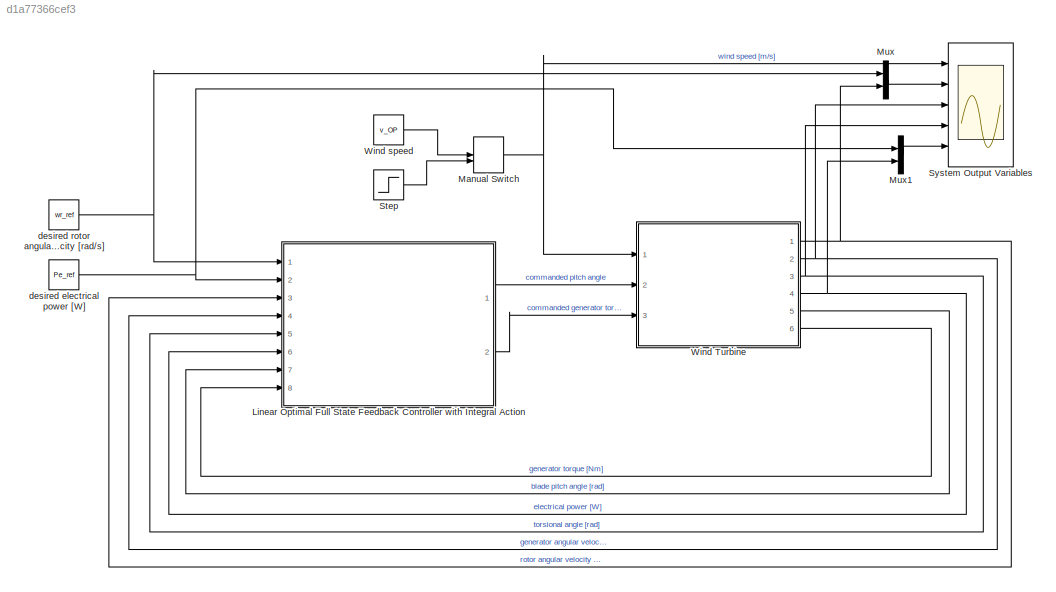
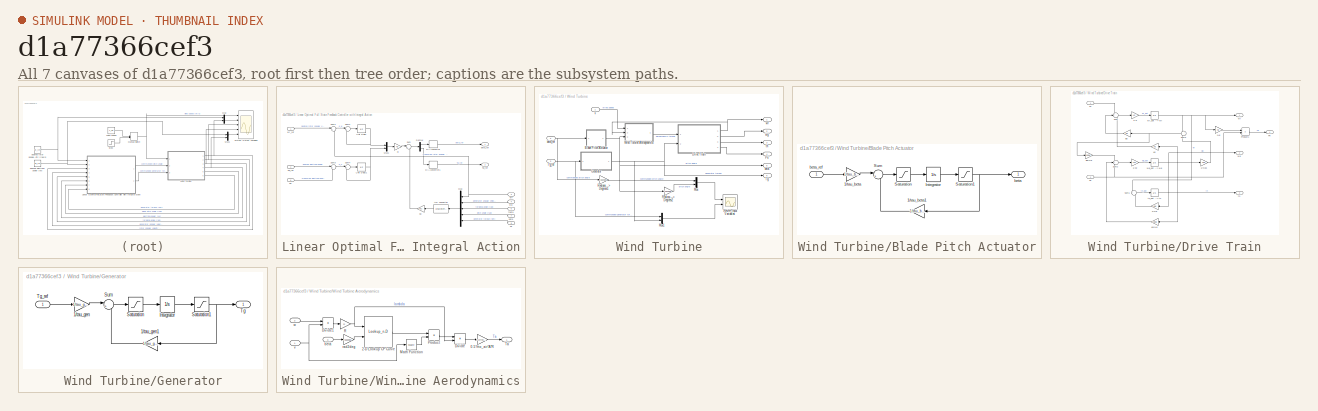
[diagram: thumbnail index - all 7 canvases of the model, root first then tree order]
MODEL slx_d1a77366cef3
KIND model
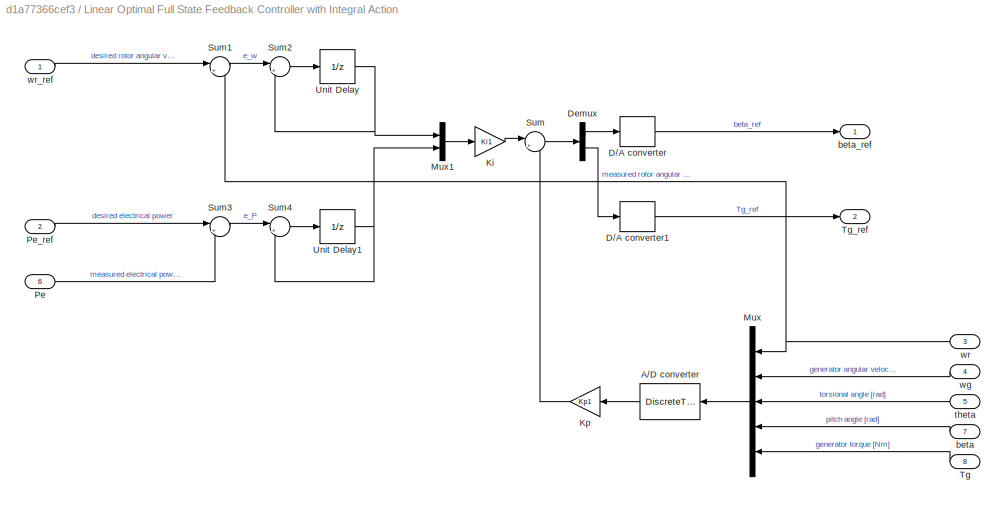
BLOCK [SubSystem] Linear Optimal Full State Feedback Controller with Integral Action
  FunctionWithSeparateData = off
  MaskHideContents = off
  MinAlgLoopOccurrences = off
  Opaque = off
  Permissions = NoReadOrWrite
  Ports = [8, 2]
  PropExecContextOutsideSubsystem = off
  RTWSystemCode = Auto
  RequestExecContextInheritance = off
BLOCK [DiscreteTransferFcn] Linear Optimal Full State Feedback Controller with Integral Action/A//D converter
  Denominator = [1]
  InputPortMap = u0
  Ports = [1, 1]
  SampleTime = Ts
BLOCK [ZeroOrderHold] Linear Optimal Full State Feedback Controller with Integral Action/D//A converter
  SampleTime = Ts
BLOCK [ZeroOrderHold] Linear Optimal Full State Feedback Controller with Integral Action/D//A converter1
  SampleTime = Ts
BLOCK [Demux] Linear Optimal Full State Feedback Controller with Integral Action/Demux
  DisplayOption = bar
  Outputs = 2
  Ports = [1, 2]
BLOCK [Gain] Linear Optimal Full State Feedback Controller with Integral Action/Ki
  Gain = Ki1
  Multiplication = Matrix(K*u) (u vector)
  OutDataTypeStr = Inherit: Inherit via internal rule
  ParamDataTypeStr = Inherit: Inherit via internal rule
  SampleTime = Ts
  SaturateOnIntegerOverflow = off
BLOCK [Gain] Linear Optimal Full State Feedback Controller with Integral Action/Kp
  Gain = Kp1
  Multiplication = Matrix(K*u) (u vector)
  OutDataTypeStr = Inherit: Inherit via internal rule
  ParamDataTypeStr = Inherit: Inherit via internal rule
  SampleTime = Ts
  SaturateOnIntegerOverflow = off
BLOCK [Mux] Linear Optimal Full State Feedback Controller with Integral Action/Mux
  DisplayOption = bar
  Inputs = 5
  Ports = [5, 1]
BLOCK [Mux] Linear Optimal Full State Feedback Controller with Integral Action/Mux1
  DisplayOption = bar
  Inputs = 2
  Ports = [2, 1]
BLOCK [Inport] Linear Optimal Full State Feedback Controller with Integral Action/Pe
  IconDisplay = Port number
  Port = 6
BLOCK [Inport] Linear Optimal Full State Feedback Controller with Integral Action/Pe_ref
  IconDisplay = Port number
  Port = 2
BLOCK [Sum] Linear Optimal Full State Feedback Controller with Integral Action/Sum
  IconShape = round
  InputSameDT = off
  Inputs = |+-
  OutDataTypeStr = Inherit: Inherit via internal rule
  Ports = [2, 1]
  SaturateOnIntegerOverflow = off
BLOCK [Sum] Linear Optimal Full State Feedback Controller with Integral Action/Sum1
  IconShape = round
  InputSameDT = off
  Inputs = |+-
  OutDataTypeStr = Inherit: Inherit via internal rule
  Ports = [2, 1]
  SaturateOnIntegerOverflow = off
BLOCK [Sum] Linear Optimal Full State Feedback Controller with Integral Action/Sum2
  IconShape = round
  InputSameDT = off
  Inputs = |++
  OutDataTypeStr = Inherit: Inherit via internal rule
  Ports = [2, 1]
  SaturateOnIntegerOverflow = off
BLOCK [Sum] Linear Optimal Full State Feedback Controller with Integral Action/Sum3
  IconShape = round
  InputSameDT = off
  Inputs = |+-
  OutDataTypeStr = Inherit: Inherit via internal rule
  Ports = [2, 1]
  SaturateOnIntegerOverflow = off
BLOCK [Sum] Linear Optimal Full State Feedback Controller with Integral Action/Sum4
  IconShape = round
  InputSameDT = off
  Inputs = |++
  OutDataTypeStr = Inherit: Inherit via internal rule
  Ports = [2, 1]
  SaturateOnIntegerOverflow = off
BLOCK [Inport] Linear Optimal Full State Feedback Controller with Integral Action/Tg
  IconDisplay = Port number
  Port = 8
BLOCK [Outport] Linear Optimal Full State Feedback Controller with Integral Action/Tg_ref
  IconDisplay = Port number
  Port = 2
BLOCK [UnitDelay] Linear Optimal Full State Feedback Controller with Integral Action/Unit Delay
  InitialCondition = xi0(1)
  InputProcessing = Elements as channels (sample based)
  SampleTime = Ts
BLOCK [UnitDelay] Linear Optimal Full State Feedback Controller with Integral Action/Unit Delay1
  InitialCondition = xi0(2)
  InputProcessing = Elements as channels (sample based)
  SampleTime = Ts
BLOCK [Inport] Linear Optimal Full State Feedback Controller with Integral Action/beta
  IconDisplay = Port number
  Port = 7
BLOCK [Outport] Linear Optimal Full State Feedback Controller with Integral Action/beta_ref
  IconDisplay = Port number
BLOCK [Inport] Linear Optimal Full State Feedback Controller with Integral Action/theta
  IconDisplay = Port number
  Port = 5
BLOCK [Inport] Linear Optimal Full State Feedback Controller with Integral Action/wg
  IconDisplay = Port number
  Port = 4
BLOCK [Inport] Linear Optimal Full State Feedback Controller with Integral Action/wr
  IconDisplay = Port number
  Port = 3
BLOCK [Inport] Linear Optimal Full State Feedback Controller with Integral Action/wr_ref
  IconDisplay = Port number
BLOCK [ManualSwitch] Manual Switch
BLOCK [Mux] Mux
  DisplayOption = bar
  Inputs = 2
  Ports = [2, 1]
BLOCK [Mux] Mux1
  DisplayOption = bar
  Inputs = 2
  Ports = [2, 1]
BLOCK [Step] Step
  After = StepFinalValue_wind
  Before = v_OP
  SampleTime = 0
  Time = StepTime_wind
BLOCK [Scope] System Output Variables
  DataFormat = StructureWithTime
  Floating = off
  LegendLocations = 0.89427      0.9291    0.086875    0.025072\n0.83896     0.72174     0.14188     0.04439\n 0.8474     0.55302     0.13375    0.025072\n 0.8874      0.3656     0.09375    0.025072\n0.86271     0.15824     0.11812     0.04439
  LimitDataPoints = off
  NumInputPorts = 5
  Ports = [5]
  SampleTime = 0
  ShowLegends = on
  YMax = 21~1.272~123.55~0.004725~5.0125e+06
  YMin = 20~1.267~122.9~0.004425~4.99e+06
  ZoomMode = xonly
BLOCK [SubSystem] Wind Turbine
  FunctionWithSeparateData = off
  MaskHideContents = off
  MinAlgLoopOccurrences = off
  Opaque = off
  Ports = [3, 6]
  PropExecContextOutsideSubsystem = off
  RTWSystemCode = Auto
  RequestExecContextInheritance = off
BLOCK [SubSystem] Wind Turbine/Blade Pitch Actuator
  FunctionWithSeparateData = off
  MaskHideContents = off
  MinAlgLoopOccurrences = off
  Opaque = off
  Ports = [1, 1]
  PropExecContextOutsideSubsystem = off
  RTWSystemCode = Auto
  RequestExecContextInheritance = off
BLOCK [Gain] Wind Turbine/Blade Pitch Actuator/1//tau_beta
  Gain = 1/tau_beta
  OutDataTypeStr = Inherit: Inherit via internal rule
  ParamDataTypeStr = Inherit: Inherit via internal rule
  SaturateOnIntegerOverflow = off
BLOCK [Gain] Wind Turbine/Blade Pitch Actuator/1//tau_beta1
  Gain = 1/tau_beta
  OutDataTypeStr = Inherit: Inherit via internal rule
  ParamDataTypeStr = Inherit: Inherit via internal rule
  SaturateOnIntegerOverflow = off
BLOCK [Integrator] Wind Turbine/Blade Pitch Actuator/Integrator
  InitialCondition = x0(4)
  Ports = [1, 1]
  Priority = 4
BLOCK [Saturate] Wind Turbine/Blade Pitch Actuator/Saturation
  InputPortMap = u0
  LowerLimit = dbeta_min
  Ports = [1, 1]
  UpperLimit = dbeta_max
BLOCK [Saturate] Wind Turbine/Blade Pitch Actuator/Saturation1
  InputPortMap = u0
  LowerLimit = beta_min
  Ports = [1, 1]
  UpperLimit = beta_max
BLOCK [Sum] Wind Turbine/Blade Pitch Actuator/Sum
  IconShape = round
  InputSameDT = off
  Inputs = |+-
  OutDataTypeStr = Inherit: Inherit via internal rule
  Ports = [2, 1]
  SaturateOnIntegerOverflow = off
BLOCK [Outport] Wind Turbine/Blade Pitch Actuator/beta
  IconDisplay = Port number
BLOCK [Inport] Wind Turbine/Blade Pitch Actuator/beta_ref
  IconDisplay = Port number
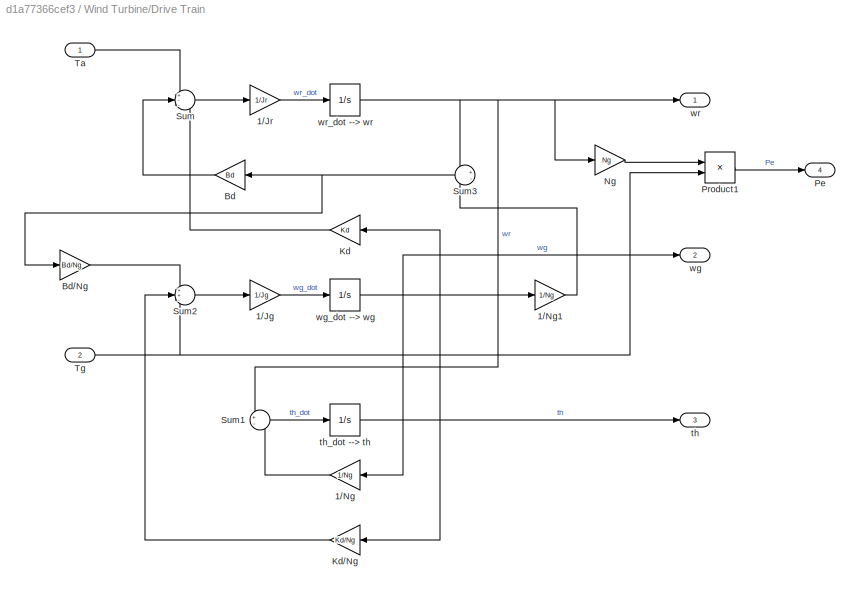
BLOCK [SubSystem] Wind Turbine/Drive Train
  FunctionWithSeparateData = off
  MaskHideContents = off
  MinAlgLoopOccurrences = off
  Opaque = off
  Ports = [2, 4]
  PropExecContextOutsideSubsystem = off
  RTWSystemCode = Auto
  RequestExecContextInheritance = off
BLOCK [Gain] Wind Turbine/Drive Train/1//Jg
  Gain = 1/Jg
  OutDataTypeStr = Inherit: Inherit via internal rule
  ParamDataTypeStr = Inherit: Inherit via internal rule
  SaturateOnIntegerOverflow = off
BLOCK [Gain] Wind Turbine/Drive Train/1//Jr
  Gain = 1/Jr
  OutDataTypeStr = Inherit: Inherit via internal rule
  ParamDataTypeStr = Inherit: Inherit via internal rule
  SaturateOnIntegerOverflow = off
BLOCK [Gain] Wind Turbine/Drive Train/1//Ng
  Gain = 1/Ng
  OutDataTypeStr = Inherit: Inherit via internal rule
  ParamDataTypeStr = Inherit: Inherit via internal rule
  SaturateOnIntegerOverflow = off
BLOCK [Gain] Wind Turbine/Drive Train/1//Ng1
  Gain = 1/Ng
  OutDataTypeStr = Inherit: Inherit via internal rule
  ParamDataTypeStr = Inherit: Inherit via internal rule
  SaturateOnIntegerOverflow = off
BLOCK [Gain] Wind Turbine/Drive Train/Bd
  Gain = Bd
  OutDataTypeStr = Inherit: Inherit via internal rule
  ParamDataTypeStr = Inherit: Inherit via internal rule
  SaturateOnIntegerOverflow = off
BLOCK [Gain] Wind Turbine/Drive Train/Bd//Ng
  Gain = Bd/Ng
  OutDataTypeStr = Inherit: Inherit via internal rule
  ParamDataTypeStr = Inherit: Inherit via internal rule
  SaturateOnIntegerOverflow = off
BLOCK [Gain] Wind Turbine/Drive Train/Kd
  Gain = Kd
  OutDataTypeStr = Inherit: Inherit via internal rule
  ParamDataTypeStr = Inherit: Inherit via internal rule
  SaturateOnIntegerOverflow = off
BLOCK [Gain] Wind Turbine/Drive Train/Kd//Ng
  Gain = Kd/Ng
  OutDataTypeStr = Inherit: Inherit via internal rule
  ParamDataTypeStr = Inherit: Inherit via internal rule
  SaturateOnIntegerOverflow = off
BLOCK [Gain] Wind Turbine/Drive Train/Ng
  Gain = Ng
  OutDataTypeStr = Inherit: Inherit via internal rule
  ParamDataTypeStr = Inherit: Inherit via internal rule
  SaturateOnIntegerOverflow = off
BLOCK [Outport] Wind Turbine/Drive Train/Pe
  IconDisplay = Port number
  Port = 4
BLOCK [Product] Wind Turbine/Drive Train/Product1
  InputSameDT = off
  OutDataTypeStr = Inherit: Inherit via internal rule
  Ports = [2, 1]
  RndMeth = Floor
  SaturateOnIntegerOverflow = off
BLOCK [Sum] Wind Turbine/Drive Train/Sum
  IconShape = round
  InputSameDT = off
  Inputs = +--
  OutDataTypeStr = Inherit: Inherit via internal rule
  Ports = [3, 1]
  SaturateOnIntegerOverflow = off
BLOCK [Sum] Wind Turbine/Drive Train/Sum1
  IconShape = round
  InputSameDT = off
  Inputs = +-
  OutDataTypeStr = Inherit: Inherit via internal rule
  Ports = [2, 1]
  SaturateOnIntegerOverflow = off
BLOCK [Sum] Wind Turbine/Drive Train/Sum2
  IconShape = round
  InputSameDT = off
  Inputs = ++-
  OutDataTypeStr = Inherit: Inherit via internal rule
  Ports = [3, 1]
  SaturateOnIntegerOverflow = off
BLOCK [Sum] Wind Turbine/Drive Train/Sum3
  IconShape = round
  InputSameDT = off
  Inputs = +-
  OutDataTypeStr = Inherit: Inherit via internal rule
  Ports = [2, 1]
  SaturateOnIntegerOverflow = off
BLOCK [Inport] Wind Turbine/Drive Train/Ta
  IconDisplay = Port number
BLOCK [Inport] Wind Turbine/Drive Train/Tg
  IconDisplay = Port number
  Port = 2
BLOCK [Outport] Wind Turbine/Drive Train/th
  IconDisplay = Port number
  Port = 3
BLOCK [Integrator] Wind Turbine/Drive Train/th_dot --> th
  InitialCondition = x0(3)
  LowerSaturationLimit = 0
  Ports = [1, 1]
  Priority = 3
BLOCK [Outport] Wind Turbine/Drive Train/wg
  IconDisplay = Port number
  Port = 2
BLOCK [Integrator] Wind Turbine/Drive Train/wg_dot --> wg
  InitialCondition = x0(2)
  LowerSaturationLimit = 0
  Ports = [1, 1]
  Priority = 2
BLOCK [Outport] Wind Turbine/Drive Train/wr
  IconDisplay = Port number
BLOCK [Integrator] Wind Turbine/Drive Train/wr_dot --> wr
  InitialCondition = x0(1)
  LimitOutput = on
  LowerSaturationLimit = 0
  Ports = [1, 1]
  Priority = 1
BLOCK [SubSystem] Wind Turbine/Generator
  FunctionWithSeparateData = off
  MaskHideContents = off
  MinAlgLoopOccurrences = off
  Opaque = off
  Ports = [1, 1]
  PropExecContextOutsideSubsystem = off
  RTWSystemCode = Auto
  RequestExecContextInheritance = off
BLOCK [Gain] Wind Turbine/Generator/1//tau_gen
  Gain = 1/tau_gen
  OutDataTypeStr = Inherit: Inherit via internal rule
  ParamDataTypeStr = Inherit: Inherit via internal rule
  SaturateOnIntegerOverflow = off
BLOCK [Gain] Wind Turbine/Generator/1//tau_gen1
  Gain = 1/tau_gen
  OutDataTypeStr = Inherit: Inherit via internal rule
  ParamDataTypeStr = Inherit: Inherit via internal rule
  SaturateOnIntegerOverflow = off
BLOCK [Integrator] Wind Turbine/Generator/Integrator
  InitialCondition = x0(5)
  Ports = [1, 1]
  Priority = 5
BLOCK [Saturate] Wind Turbine/Generator/Saturation
  InputPortMap = u0
  LowerLimit = dgen_min
  Ports = [1, 1]
  UpperLimit = dgen_max
BLOCK [Saturate] Wind Turbine/Generator/Saturation1
  InputPortMap = u0
  LowerLimit = gen_min
  Ports = [1, 1]
  UpperLimit = gen_max
BLOCK [Sum] Wind Turbine/Generator/Sum
  IconShape = round
  InputSameDT = off
  Inputs = |+-
  OutDataTypeStr = Inherit: Inherit via internal rule
  Ports = [2, 1]
  SaturateOnIntegerOverflow = off
BLOCK [Outport] Wind Turbine/Generator/Tg
  IconDisplay = Port number
BLOCK [Inport] Wind Turbine/Generator/Tg_ref
  IconDisplay = Port number
BLOCK [Mux] Wind Turbine/Mux
  DisplayOption = bar
  Inputs = 2
  Ports = [2, 1]
BLOCK [Mux] Wind Turbine/Mux1
  DisplayOption = bar
  Inputs = 2
  Ports = [2, 1]
BLOCK [Outport] Wind Turbine/Pe
  IconDisplay = Port number
  Port = 4
BLOCK [Gain] Wind Turbine/Radians --> Degrees1
  Gain = rad2deg
  OutDataTypeStr = Inherit: Inherit via internal rule
  ParamDataTypeStr = Inherit: Inherit via internal rule
  SaturateOnIntegerOverflow = off
BLOCK [Gain] Wind Turbine/Radians --> Degrees2
  Gain = rad2deg
  OutDataTypeStr = Inherit: Inherit via internal rule
  ParamDataTypeStr = Inherit: Inherit via internal rule
  SaturateOnIntegerOverflow = off
BLOCK [Scope] Wind Turbine/System Input Variables
  DataFormat = StructureWithTime
  Floating = off
  LegendLocations = 0.87396     0.91362     0.10714    0.042503\n0.85766     0.44136     0.12343    0.042503
  LimitDataPoints = off
  NumInputPorts = 2
  Ports = [2]
  SampleTime = 0
  SaveName = ScopeData2
  ShowLegends = on
  YMax = 1050~42714.3
  YMin = 0~38646.3
  ZoomMode = xonly
BLOCK [Outport] Wind Turbine/Tg
  IconDisplay = Port number
  Port = 6
BLOCK [Inport] Wind Turbine/Tg_ref
  IconDisplay = Port number
  Port = 3
BLOCK [SubSystem] Wind Turbine/Wind Turbine Aerodynamics
  FunctionWithSeparateData = off
  MaskHideContents = off
  MinAlgLoopOccurrences = off
  Opaque = off
  Ports = [3, 1]
  PropExecContextOutsideSubsystem = off
  RTWSystemCode = Auto
  RequestExecContextInheritance = off
BLOCK [Gain] Wind Turbine/Wind Turbine Aerodynamics/0.5*rho_air*A*R
  Gain = 0.5*rho_air*A*R
  OutDataTypeStr = Inherit: Inherit via internal rule
  ParamDataTypeStr = Inherit: Inherit via internal rule
  SaturateOnIntegerOverflow = off
BLOCK [Lookup_n-D] Wind Turbine/Wind Turbine Aerodynamics/2-D Lookup CP Curve
  BreakpointsForDimension1 = Lambda0
  BreakpointsForDimension2 = Pitch0
  BreakpointsForDimension3 = CP0'
  DiagnosticForOutOfRangeInput = Warning
  Ports = [2, 1]
  RndMeth = Simplest
  Table = CP0
BLOCK [Product] Wind Turbine/Wind Turbine Aerodynamics/Divide
  InputSameDT = off
  Inputs = */
  OutDataTypeStr = Inherit: Inherit via internal rule
  Ports = [2, 1]
  RndMeth = Floor
  SaturateOnIntegerOverflow = off
BLOCK [Product] Wind Turbine/Wind Turbine Aerodynamics/Divide1
  InputSameDT = off
  Inputs = */
  OutDataTypeStr = Inherit: Inherit via internal rule
  Ports = [2, 1]
  RndMeth = Floor
  SaturateOnIntegerOverflow = off
BLOCK [Math] Wind Turbine/Wind Turbine Aerodynamics/Math Function
  Operator = square
  Ports = [1, 1]
BLOCK [Product] Wind Turbine/Wind Turbine Aerodynamics/Product
  InputSameDT = off
  OutDataTypeStr = Inherit: Inherit via internal rule
  Ports = [2, 1]
  RndMeth = Floor
  SaturateOnIntegerOverflow = off
BLOCK [Gain] Wind Turbine/Wind Turbine Aerodynamics/R
  Gain = R
  OutDataTypeStr = Inherit: Inherit via internal rule
  ParamDataTypeStr = Inherit: Inherit via internal rule
  SaturateOnIntegerOverflow = off
BLOCK [Outport] Wind Turbine/Wind Turbine Aerodynamics/Ta
  IconDisplay = Port number
BLOCK [Inport] Wind Turbine/Wind Turbine Aerodynamics/beta
  IconDisplay = Port number
  Port = 3
BLOCK [Gain] Wind Turbine/Wind Turbine Aerodynamics/rad2deg
  Gain = rad2deg
  OutDataTypeStr = Inherit: Inherit via internal rule
  ParamDataTypeStr = Inherit: Inherit via internal rule
  SaturateOnIntegerOverflow = off
BLOCK [Inport] Wind Turbine/Wind Turbine Aerodynamics/v
  IconDisplay = Port number
BLOCK [Inport] Wind Turbine/Wind Turbine Aerodynamics/w
  IconDisplay = Port number
  Port = 2
BLOCK [Outport] Wind Turbine/beta
  IconDisplay = Port number
  Port = 5
BLOCK [Inport] Wind Turbine/beta_ref
  IconDisplay = Port number
  Port = 2
BLOCK [Outport] Wind Turbine/th
  IconDisplay = Port number
  Port = 3
BLOCK [Inport] Wind Turbine/v
  IconDisplay = Port number
BLOCK [Outport] Wind Turbine/wg
  IconDisplay = Port number
  Port = 2
BLOCK [Outport] Wind Turbine/wr
  IconDisplay = Port number
BLOCK [Constant] Wind speed
  Value = v_OP
BLOCK [Constant] desired electrical power [W]
  Value = Pe_ref
BLOCK [Constant] desired rotor angular velocity [rad//s]
  Value = wr_ref
LINE Linear Optimal Full State Feedback Controller with Integral Action/A//D converter:1 -> Linear Optimal Full State Feedback Controller with Integral Action/Kp:1
LINE Linear Optimal Full State Feedback Controller with Integral Action/D//A converter1:1 -> Linear Optimal Full State Feedback Controller with Integral Action/Tg_ref:1
LINE Linear Optimal Full State Feedback Controller with Integral Action/D//A converter:1 -> Linear Optimal Full State Feedback Controller with Integral Action/beta_ref:1
LINE Linear Optimal Full State Feedback Controller with Integral Action/Demux:1 -> Linear Optimal Full State Feedback Controller with Integral Action/D//A converter:1
LINE Linear Optimal Full State Feedback Controller with Integral Action/Demux:2 -> Linear Optimal Full State Feedback Controller with Integral Action/D//A converter1:1
LINE Linear Optimal Full State Feedback Controller with Integral Action/Ki:1 -> Linear Optimal Full State Feedback Controller with Integral Action/Sum:1
LINE Linear Optimal Full State Feedback Controller with Integral Action/Kp:1 -> Linear Optimal Full State Feedback Controller with Integral Action/Sum:2
LINE Linear Optimal Full State Feedback Controller with Integral Action/Mux1:1 -> Linear Optimal Full State Feedback Controller with Integral Action/Ki:1
LINE Linear Optimal Full State Feedback Controller with Integral Action/Mux:1 -> Linear Optimal Full State Feedback Controller with Integral Action/A//D converter:1
LINE Linear Optimal Full State Feedback Controller with Integral Action/Pe:1 -> Linear Optimal Full State Feedback Controller with Integral Action/Sum3:2
LINE Linear Optimal Full State Feedback Controller with Integral Action/Pe_ref:1 -> Linear Optimal Full State Feedback Controller with Integral Action/Sum3:1
LINE Linear Optimal Full State Feedback Controller with Integral Action/Sum1:1 -> Linear Optimal Full State Feedback Controller with Integral Action/Sum2:1
LINE Linear Optimal Full State Feedback Controller with Integral Action/Sum2:1 -> Linear Optimal Full State Feedback Controller with Integral Action/Unit Delay:1
LINE Linear Optimal Full State Feedback Controller with Integral Action/Sum3:1 -> Linear Optimal Full State Feedback Controller with Integral Action/Sum4:1
LINE Linear Optimal Full State Feedback Controller with Integral Action/Sum4:1 -> Linear Optimal Full State Feedback Controller with Integral Action/Unit Delay1:1
LINE Linear Optimal Full State Feedback Controller with Integral Action/Sum:1 -> Linear Optimal Full State Feedback Controller with Integral Action/Demux:1
LINE Linear Optimal Full State Feedback Controller with Integral Action/Tg:1 -> Linear Optimal Full State Feedback Controller with Integral Action/Mux:5
NET Linear Optimal Full State Feedback Controller with Integral Action/Unit Delay1:1 -> Linear Optimal Full State Feedback Controller with Integral Action/Mux1:2, Linear Optimal Full State Feedback Controller with Integral Action/Sum4:2
NET Linear Optimal Full State Feedback Controller with Integral Action/Unit Delay:1 -> Linear Optimal Full State Feedback Controller with Integral Action/Mux1:1, Linear Optimal Full State Feedback Controller with Integral Action/Sum2:2
LINE Linear Optimal Full State Feedback Controller with Integral Action/beta:1 -> Linear Optimal Full State Feedback Controller with Integral Action/Mux:4
LINE Linear Optimal Full State Feedback Controller with Integral Action/theta:1 -> Linear Optimal Full State Feedback Controller with Integral Action/Mux:3
LINE Linear Optimal Full State Feedback Controller with Integral Action/wg:1 -> Linear Optimal Full State Feedback Controller with Integral Action/Mux:2
NET Linear Optimal Full State Feedback Controller with Integral Action/wr:1 -> Linear Optimal Full State Feedback Controller with Integral Action/Mux:1, Linear Optimal Full State Feedback Controller with Integral Action/Sum1:2
LINE Linear Optimal Full State Feedback Controller with Integral Action/wr_ref:1 -> Linear Optimal Full State Feedback Controller with Integral Action/Sum1:1
LINE Linear Optimal Full State Feedback Controller with Integral Action:1 -> Wind Turbine:2
LINE Linear Optimal Full State Feedback Controller with Integral Action:2 -> Wind Turbine:3
NET Manual Switch:1 -> System Output Variables:1, Wind Turbine:1
LINE Mux1:1 -> System Output Variables:5
LINE Mux:1 -> System Output Variables:2
LINE Step:1 -> Manual Switch:2
LINE Wind Turbine/Blade Pitch Actuator/1//tau_beta1:1 -> Wind Turbine/Blade Pitch Actuator/Sum:2
LINE Wind Turbine/Blade Pitch Actuator/1//tau_beta:1 -> Wind Turbine/Blade Pitch Actuator/Sum:1
LINE Wind Turbine/Blade Pitch Actuator/Integrator:1 -> Wind Turbine/Blade Pitch Actuator/Saturation1:1
NET Wind Turbine/Blade Pitch Actuator/Saturation1:1 -> Wind Turbine/Blade Pitch Actuator/1//tau_beta1:1, Wind Turbine/Blade Pitch Actuator/beta:1
LINE Wind Turbine/Blade Pitch Actuator/Saturation:1 -> Wind Turbine/Blade Pitch Actuator/Integrator:1
LINE Wind Turbine/Blade Pitch Actuator/Sum:1 -> Wind Turbine/Blade Pitch Actuator/Saturation:1
LINE Wind Turbine/Blade Pitch Actuator/beta_ref:1 -> Wind Turbine/Blade Pitch Actuator/1//tau_beta:1
NET Wind Turbine/Blade Pitch Actuator:1 -> Wind Turbine/Radians --> Degrees2:1, Wind Turbine/Wind Turbine Aerodynamics:3, Wind Turbine/beta:1
LINE Wind Turbine/Drive Train/1//Jg:1 -> Wind Turbine/Drive Train/wg_dot --> wg:1
LINE Wind Turbine/Drive Train/1//Jr:1 -> Wind Turbine/Drive Train/wr_dot --> wr:1
LINE Wind Turbine/Drive Train/1//Ng1:1 -> Wind Turbine/Drive Train/Sum3:2
LINE Wind Turbine/Drive Train/1//Ng:1 -> Wind Turbine/Drive Train/Sum1:2
LINE Wind Turbine/Drive Train/Bd//Ng:1 -> Wind Turbine/Drive Train/Sum2:1
LINE Wind Turbine/Drive Train/Bd:1 -> Wind Turbine/Drive Train/Sum:2
LINE Wind Turbine/Drive Train/Kd//Ng:1 -> Wind Turbine/Drive Train/Sum2:2
LINE Wind Turbine/Drive Train/Kd:1 -> Wind Turbine/Drive Train/Sum:3
LINE Wind Turbine/Drive Train/Ng:1 -> Wind Turbine/Drive Train/Product1:1
LINE Wind Turbine/Drive Train/Product1:1 -> Wind Turbine/Drive Train/Pe:1
LINE Wind Turbine/Drive Train/Sum1:1 -> Wind Turbine/Drive Train/th_dot --> th:1
LINE Wind Turbine/Drive Train/Sum2:1 -> Wind Turbine/Drive Train/1//Jg:1
NET Wind Turbine/Drive Train/Sum3:1 -> Wind Turbine/Drive Train/Bd//Ng:1, Wind Turbine/Drive Train/Bd:1
LINE Wind Turbine/Drive Train/Sum:1 -> Wind Turbine/Drive Train/1//Jr:1
LINE Wind Turbine/Drive Train/Ta:1 -> Wind Turbine/Drive Train/Sum:1
NET Wind Turbine/Drive Train/Tg:1 -> Wind Turbine/Drive Train/Product1:2, Wind Turbine/Drive Train/Sum2:3
NET Wind Turbine/Drive Train/th_dot --> th:1 -> Wind Turbine/Drive Train/Kd//Ng:1, Wind Turbine/Drive Train/Kd:1, Wind Turbine/Drive Train/th:1
NET Wind Turbine/Drive Train/wg_dot --> wg:1 -> Wind Turbine/Drive Train/1//Ng1:1, Wind Turbine/Drive Train/1//Ng:1, Wind Turbine/Drive Train/wg:1
NET Wind Turbine/Drive Train/wr_dot --> wr:1 -> Wind Turbine/Drive Train/Ng:1, Wind Turbine/Drive Train/Sum1:1, Wind Turbine/Drive Train/Sum3:1, Wind Turbine/Drive Train/wr:1
NET Wind Turbine/Drive Train:1 -> Wind Turbine/Wind Turbine Aerodynamics:2, Wind Turbine/wr:1
LINE Wind Turbine/Drive Train:2 -> Wind Turbine/wg:1
LINE Wind Turbine/Drive Train:3 -> Wind Turbine/th:1
LINE Wind Turbine/Drive Train:4 -> Wind Turbine/Pe:1
LINE Wind Turbine/Generator/1//tau_gen1:1 -> Wind Turbine/Generator/Sum:2
LINE Wind Turbine/Generator/1//tau_gen:1 -> Wind Turbine/Generator/Sum:1
LINE Wind Turbine/Generator/Integrator:1 -> Wind Turbine/Generator/Saturation1:1
NET Wind Turbine/Generator/Saturation1:1 -> Wind Turbine/Generator/1//tau_gen1:1, Wind Turbine/Generator/Tg:1
LINE Wind Turbine/Generator/Saturation:1 -> Wind Turbine/Generator/Integrator:1
LINE Wind Turbine/Generator/Sum:1 -> Wind Turbine/Generator/Saturation:1
LINE Wind Turbine/Generator/Tg_ref:1 -> Wind Turbine/Generator/1//tau_gen:1
NET Wind Turbine/Generator:1 -> Wind Turbine/Drive Train:2, Wind Turbine/Mux1:2, Wind Turbine/Tg:1
LINE Wind Turbine/Mux1:1 -> Wind Turbine/System Input Variables:2
LINE Wind Turbine/Mux:1 -> Wind Turbine/System Input Variables:1
LINE Wind Turbine/Radians --> Degrees1:1 -> Wind Turbine/Mux:1
LINE Wind Turbine/Radians --> Degrees2:1 -> Wind Turbine/Mux:2
NET Wind Turbine/Tg_ref:1 -> Wind Turbine/Generator:1, Wind Turbine/Mux1:1
LINE Wind Turbine/Wind Turbine Aerodynamics/0.5*rho_air*A*R:1 -> Wind Turbine/Wind Turbine Aerodynamics/Ta:1
LINE Wind Turbine/Wind Turbine Aerodynamics/2-D Lookup CP Curve:1 -> Wind Turbine/Wind Turbine Aerodynamics/Product:1
LINE Wind Turbine/Wind Turbine Aerodynamics/Divide1:1 -> Wind Turbine/Wind Turbine Aerodynamics/R:1
LINE Wind Turbine/Wind Turbine Aerodynamics/Divide:1 -> Wind Turbine/Wind Turbine Aerodynamics/0.5*rho_air*A*R:1
LINE Wind Turbine/Wind Turbine Aerodynamics/Math Function:1 -> Wind Turbine/Wind Turbine Aerodynamics/Product:2
LINE Wind Turbine/Wind Turbine Aerodynamics/Product:1 -> Wind Turbine/Wind Turbine Aerodynamics/Divide:1
NET Wind Turbine/Wind Turbine Aerodynamics/R:1 -> Wind Turbine/Wind Turbine Aerodynamics/2-D Lookup CP Curve:1, Wind Turbine/Wind Turbine Aerodynamics/Divide:2
LINE Wind Turbine/Wind Turbine Aerodynamics/beta:1 -> Wind Turbine/Wind Turbine Aerodynamics/rad2deg:1
LINE Wind Turbine/Wind Turbine Aerodynamics/rad2deg:1 -> Wind Turbine/Wind Turbine Aerodynamics/2-D Lookup CP Curve:2
NET Wind Turbine/Wind Turbine Aerodynamics/v:1 -> Wind Turbine/Wind Turbine Aerodynamics/Divide1:2, Wind Turbine/Wind Turbine Aerodynamics/Math Function:1
LINE Wind Turbine/Wind Turbine Aerodynamics/w:1 -> Wind Turbine/Wind Turbine Aerodynamics/Divide1:1
LINE Wind Turbine/Wind Turbine Aerodynamics:1 -> Wind Turbine/Drive Train:1
NET Wind Turbine/beta_ref:1 -> Wind Turbine/Blade Pitch Actuator:1, Wind Turbine/Radians --> Degrees1:1
LINE Wind Turbine/v:1 -> Wind Turbine/Wind Turbine Aerodynamics:1
NET Wind Turbine:1 -> Linear Optimal Full State Feedback Controller with Integral Action:3, Mux:2
NET Wind Turbine:2 -> Linear Optimal Full State Feedback Controller with Integral Action:4, System Output Variables:3
NET Wind Turbine:3 -> Linear Optimal Full State Feedback Controller with Integral Action:5, System Output Variables:4
NET Wind Turbine:4 -> Linear Optimal Full State Feedback Controller with Integral Action:6, Mux1:2
LINE Wind Turbine:5 -> Linear Optimal Full State Feedback Controller with Integral Action:7
LINE Wind Turbine:6 -> Linear Optimal Full State Feedback Controller with Integral Action:8
LINE Wind speed:1 -> Manual Switch:1
NET desired electrical power [W]:1 -> Linear Optimal Full State Feedback Controller with Integral Action:2, Mux1:1
NET desired rotor angular velocity [rad//s]:1 -> Linear Optimal Full State Feedback Controller with Integral Action:1, Mux:1
note: NET lines group one-source signal fan-out (src -> all destinations, sorted); 1:1 wires keep LINE
